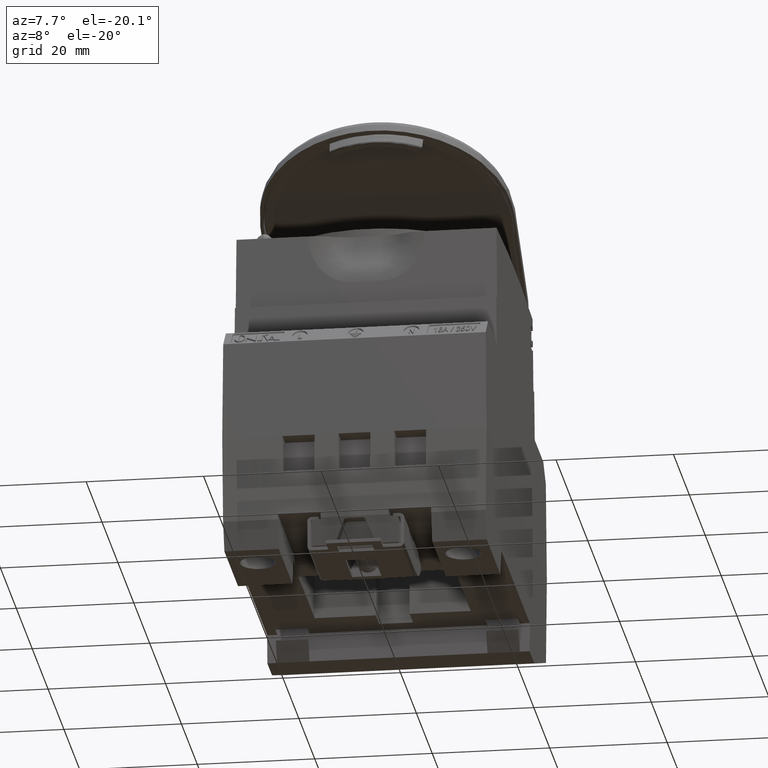
[diagram: clean part render]
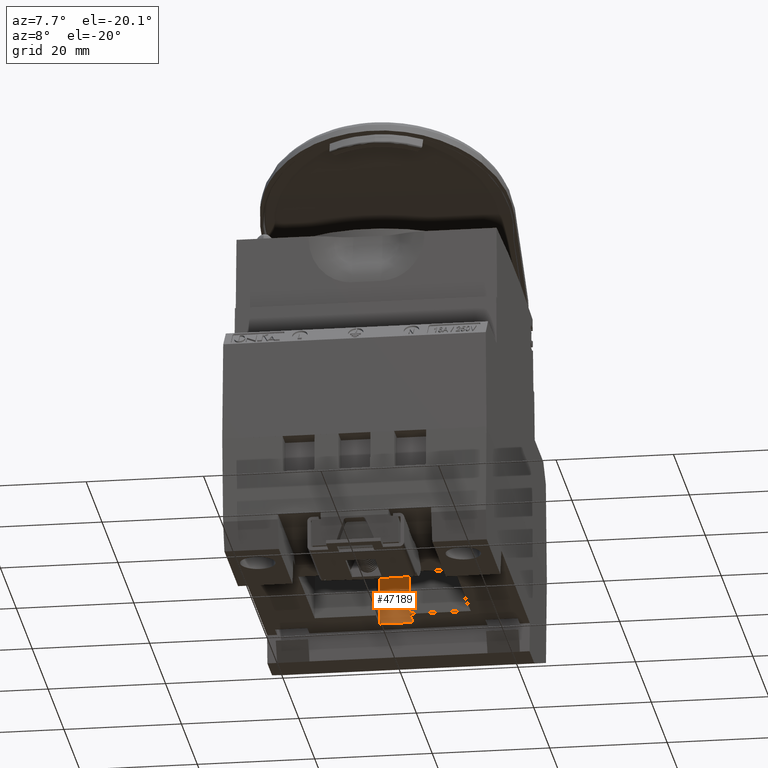
[diagram: same view with one face highlighted and labeled with its STEP entity id]
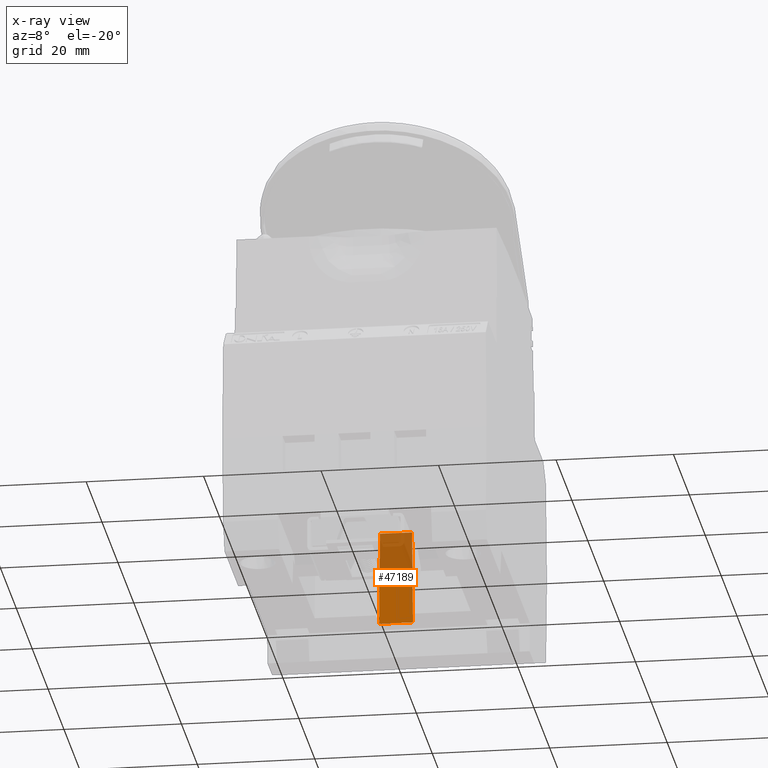
[diagram: x-ray of the same camera — body ghosted, the highlighted face saturated]
A machine part, auxiliary view. The second image highlights one B-rep face of the part: STEP entity #47189.
The next image is the same camera in x-ray: the body ghosted, the highlighted face saturated — about 49% of this face is hidden behind the body in this view.
In plain terms, the highlighted planar face has unit normal (-0, 1, 0.0087).
Its self-contained STEP definition (entity closure, byte-faithful):
#1130 = VECTOR ( 'NONE', #27561, 1000.000000000000000 ) ;
#1690 = EDGE_LOOP ( 'NONE', ( #48191, #48225, #48226, #48135 ) ) ;
#4048 = CARTESIAN_POINT ( 'NONE',  ( 2.741347594965813300, 14.37763535431132300, -24.25424780258198600 ) ) ;
#4052 = DIRECTION ( 'NONE',  ( 0.008726203243944878300, 0.008726203243944149700, -0.9999238504775704900 ) ) ;
#4069 = LINE ( 'NONE', #4048, #12781 ) ;
#4131 = CARTESIAN_POINT ( 'NONE',  ( -2.881813096385934500, 14.51810085573100300, -40.34999999999999400 ) ) ;
#4165 = DIRECTION ( 'NONE',  ( 0.008726203243944224300, -0.008726203243944090700, 0.9999238504775704900 ) ) ;
#4171 = LINE ( 'NONE', #4131, #12873 ) ;
#12781 = VECTOR ( 'NONE', #4052, 1000.000000000000000 ) ;
#12873 = VECTOR ( 'NONE', #4165, 1000.000000000000000 ) ;
#15543 = EDGE_CURVE ( 'NONE', #36070, #36277, #27545, .T. ) ;
#16508 = LINE ( 'NONE', #16651, #28560 ) ;
#16651 = CARTESIAN_POINT ( 'NONE',  ( -30.75000000000000000, 14.51810085573100300, -40.35000000000000100 ) ) ;
#16673 = DIRECTION ( 'NONE',  ( -1.000000000000000000, -0.0000000000000000000, -0.0000000000000000000 ) ) ;
#24156 = CARTESIAN_POINT ( 'NONE',  ( 5.043345513732033300, 14.21472146721441900, -5.586165392829200500 ) ) ;
#24157 = DIRECTION ( 'NONE',  ( -8.374931369687201100E-017, 0.9999619230641713100, 0.008726535498373959000 ) ) ;
#24165 = PLANE ( 'NONE',  #29402 ) ;
#24177 = FACE_OUTER_BOUND ( 'NONE', #1690, .T. ) ;
#24274 = DIRECTION ( 'NONE',  ( 0.0000000000000000000, -0.008726535498373959000, 0.9999619230641713100 ) ) ;
#27515 = CARTESIAN_POINT ( 'NONE',  ( -2.740930074449526200, 14.37721783379459400, -24.20640469016875000 ) ) ;
#27545 = LINE ( 'NONE', #27515, #1130 ) ;
#27561 = DIRECTION ( 'NONE',  ( 0.9999619201644651700, 7.615532134500815800E-005, -0.008726535473072295400 ) ) ;
#28560 = VECTOR ( 'NONE', #16673, 1000.000000000000000 ) ;
#29402 = AXIS2_PLACEMENT_3D ( 'NONE', #24156, #24157, #24274 ) ;
#32093 = CARTESIAN_POINT ( 'NONE',  ( -2.740930074449530600, 14.37721783379459400, -24.20640469016875000 ) ) ;
#32120 = CARTESIAN_POINT ( 'NONE',  ( 2.741347594965810600, 14.37763535431132000, -24.25424780258198600 ) ) ;
#32838 = CARTESIAN_POINT ( 'NONE',  ( 2.881813096385505500, 14.51810085573100300, -40.34999999999999400 ) ) ;
#32884 = CARTESIAN_POINT ( 'NONE',  ( -2.881813096385935000, 14.51810085573100300, -40.34999999999999400 ) ) ;
#36070 = VERTEX_POINT ( 'NONE', #32093 ) ;
#36277 = VERTEX_POINT ( 'NONE', #32120 ) ;
#37323 = VERTEX_POINT ( 'NONE', #32838 ) ;
#37408 = VERTEX_POINT ( 'NONE', #32884 ) ;
#43649 = EDGE_CURVE ( 'NONE', #37323, #37408, #16508, .T. ) ;
#47189 = ADVANCED_FACE ( 'NONE', ( #24177 ), #24165, .F. ) ;
#48135 = ORIENTED_EDGE ( 'NONE', *, *, #52941, .F. ) ;
#48191 = ORIENTED_EDGE ( 'NONE', *, *, #15543, .F. ) ;
#48225 = ORIENTED_EDGE ( 'NONE', *, *, #52966, .F. ) ;
#48226 = ORIENTED_EDGE ( 'NONE', *, *, #43649, .F. ) ;
#52941 = EDGE_CURVE ( 'NONE', #36277, #37323, #4069, .T. ) ;
#52966 = EDGE_CURVE ( 'NONE', #37408, #36070, #4171, .T. ) ;